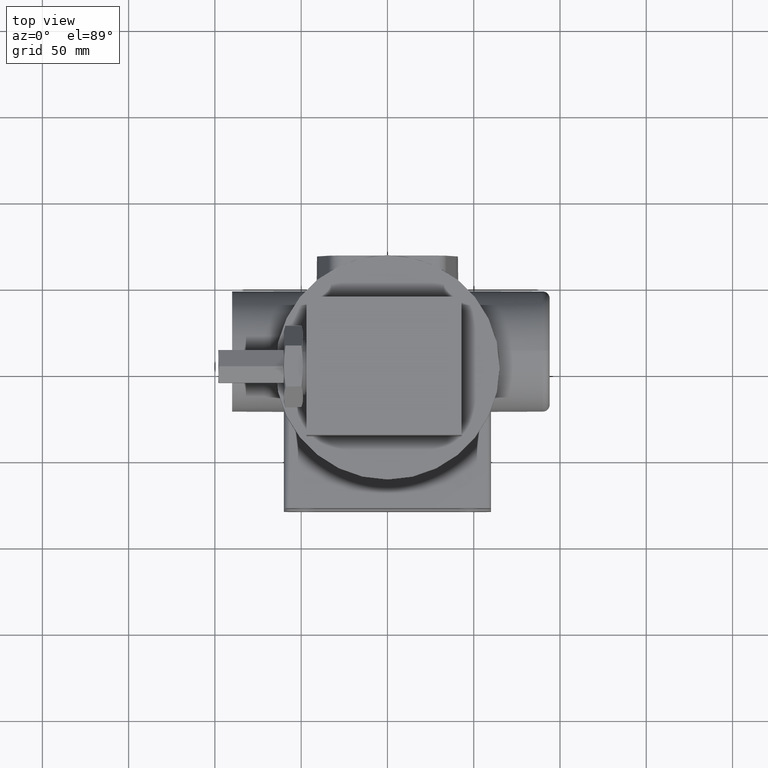
[diagram: clean part render]
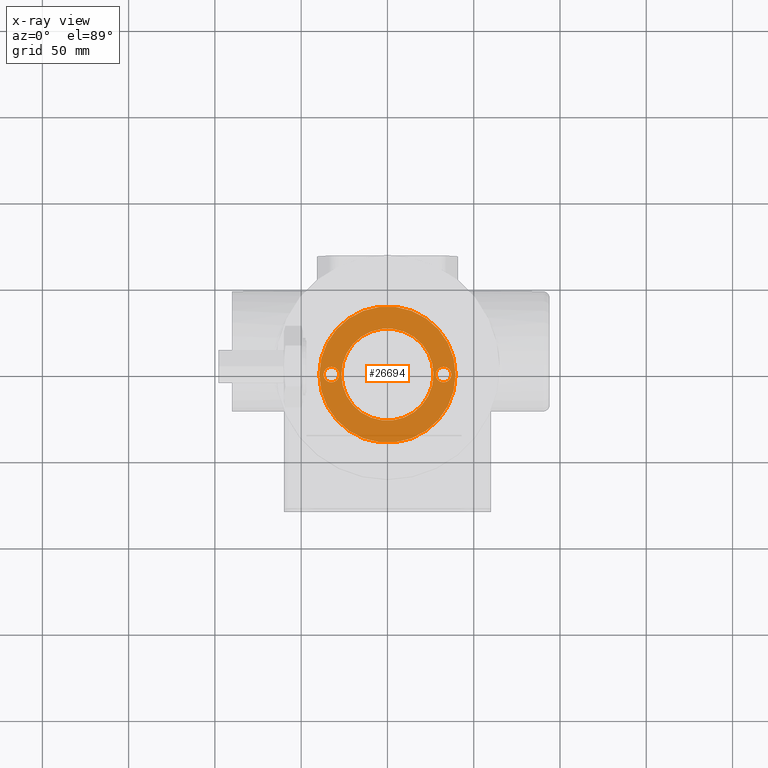
[diagram: x-ray — body ghosted, one internal face saturated and labeled with its STEP entity id]
A machine part, top view, then the same camera in x-ray: the body is ghosted and one INTERNAL B-rep face — a face not visible from any outside direction — is saturated and labeled: STEP entity #26694.
In plain terms, the highlighted planar face has unit normal (0, 0, 1).
Its self-contained STEP definition (entity closure, byte-faithful):
#10913=CARTESIAN_POINT('',(0.E0,0.E0,-1.523E2));
#10914=DIRECTION('',(0.E0,0.E0,-1.E0));
#10915=DIRECTION('',(-1.E0,0.E0,0.E0));
#10916=AXIS2_PLACEMENT_3D('',#10913,#10914,#10915);
#10918=CARTESIAN_POINT('',(0.E0,0.E0,-1.523E2));
#10919=DIRECTION('',(0.E0,0.E0,-1.E0));
#10920=DIRECTION('',(1.E0,0.E0,0.E0));
#10921=AXIS2_PLACEMENT_3D('',#10918,#10919,#10920);
#10923=CARTESIAN_POINT('',(-3.25E1,0.E0,-1.523E2));
#10924=DIRECTION('',(0.E0,0.E0,-1.E0));
#10925=DIRECTION('',(0.E0,-1.E0,0.E0));
#10926=AXIS2_PLACEMENT_3D('',#10923,#10924,#10925);
#10928=CARTESIAN_POINT('',(-3.25E1,0.E0,-1.523E2));
#10929=DIRECTION('',(0.E0,0.E0,-1.E0));
#10930=DIRECTION('',(0.E0,1.E0,0.E0));
#10931=AXIS2_PLACEMENT_3D('',#10928,#10929,#10930);
#10933=CARTESIAN_POINT('',(3.25E1,0.E0,-1.523E2));
#10934=DIRECTION('',(0.E0,0.E0,-1.E0));
#10935=DIRECTION('',(0.E0,1.E0,0.E0));
#10936=AXIS2_PLACEMENT_3D('',#10933,#10934,#10935);
#10938=CARTESIAN_POINT('',(3.25E1,0.E0,-1.523E2));
#10939=DIRECTION('',(0.E0,0.E0,-1.E0));
#10940=DIRECTION('',(0.E0,-1.E0,0.E0));
#10941=AXIS2_PLACEMENT_3D('',#10938,#10939,#10940);
#10943=CARTESIAN_POINT('',(0.E0,0.E0,-1.523E2));
#10944=DIRECTION('',(0.E0,0.E0,1.E0));
#10945=DIRECTION('',(1.E0,0.E0,0.E0));
#10946=AXIS2_PLACEMENT_3D('',#10943,#10944,#10945);
#10948=CARTESIAN_POINT('',(0.E0,0.E0,-1.523E2));
#10949=DIRECTION('',(0.E0,0.E0,1.E0));
#10950=DIRECTION('',(-1.E0,0.E0,0.E0));
#10951=AXIS2_PLACEMENT_3D('',#10948,#10949,#10950);
#12646=CARTESIAN_POINT('',(-3.25E1,-4.5E0,-1.523E2));
#12647=VERTEX_POINT('',#12646);
#12648=CARTESIAN_POINT('',(-3.25E1,4.5E0,-1.523E2));
#12649=VERTEX_POINT('',#12648);
#12654=CARTESIAN_POINT('',(3.25E1,4.5E0,-1.523E2));
#12655=VERTEX_POINT('',#12654);
#12656=CARTESIAN_POINT('',(3.25E1,-4.5E0,-1.523E2));
#12657=VERTEX_POINT('',#12656);
#12658=CARTESIAN_POINT('',(2.67E1,0.E0,-1.523E2));
#12659=CARTESIAN_POINT('',(-2.67E1,0.E0,-1.523E2));
#12660=VERTEX_POINT('',#12658);
#12661=VERTEX_POINT('',#12659);
#12674=CARTESIAN_POINT('',(-3.95E1,0.E0,-1.523E2));
#12675=CARTESIAN_POINT('',(3.95E1,0.E0,-1.523E2));
#12676=VERTEX_POINT('',#12674);
#12677=VERTEX_POINT('',#12675);
#26667=CARTESIAN_POINT('',(0.E0,0.E0,-1.523E2));
#26668=DIRECTION('',(0.E0,0.E0,1.E0));
#26669=DIRECTION('',(1.E0,0.E0,0.E0));
#26670=AXIS2_PLACEMENT_3D('',#26667,#26668,#26669);
#26671=PLANE('',#26670);
#26673=ORIENTED_EDGE('',*,*,#26672,.T.);
#26675=ORIENTED_EDGE('',*,*,#26674,.T.);
#26676=EDGE_LOOP('',(#26673,#26675));
#26677=FACE_OUTER_BOUND('',#26676,.F.);
#26679=ORIENTED_EDGE('',*,*,#26678,.F.);
#26681=ORIENTED_EDGE('',*,*,#26680,.F.);
#26682=EDGE_LOOP('',(#26679,#26681));
#26683=FACE_BOUND('',#26682,.F.);
#26685=ORIENTED_EDGE('',*,*,#26684,.F.);
#26687=ORIENTED_EDGE('',*,*,#26686,.F.);
#26688=EDGE_LOOP('',(#26685,#26687));
#26689=FACE_BOUND('',#26688,.F.);
#26690=ORIENTED_EDGE('',*,*,#26661,.T.);
#26691=ORIENTED_EDGE('',*,*,#26647,.T.);
#26692=EDGE_LOOP('',(#26690,#26691));
#26693=FACE_BOUND('',#26692,.F.);
#26694=ADVANCED_FACE('',(#26677,#26683,#26689,#26693),#26671,.T.);
#10917=CIRCLE('',#10916,3.95E1);
#10922=CIRCLE('',#10921,3.95E1);
#10927=CIRCLE('',#10926,4.5E0);
#10932=CIRCLE('',#10931,4.5E0);
#10937=CIRCLE('',#10936,4.5E0);
#10942=CIRCLE('',#10941,4.5E0);
#10947=CIRCLE('',#10946,2.67E1);
#10952=CIRCLE('',#10951,2.67E1);
#26647=EDGE_CURVE('',#12661,#12660,#10952,.T.);
#26661=EDGE_CURVE('',#12660,#12661,#10947,.T.);
#26672=EDGE_CURVE('',#12676,#12677,#10917,.T.);
#26674=EDGE_CURVE('',#12677,#12676,#10922,.T.);
#26678=EDGE_CURVE('',#12647,#12649,#10927,.T.);
#26680=EDGE_CURVE('',#12649,#12647,#10932,.T.);
#26684=EDGE_CURVE('',#12655,#12657,#10937,.T.);
#26686=EDGE_CURVE('',#12657,#12655,#10942,.T.);